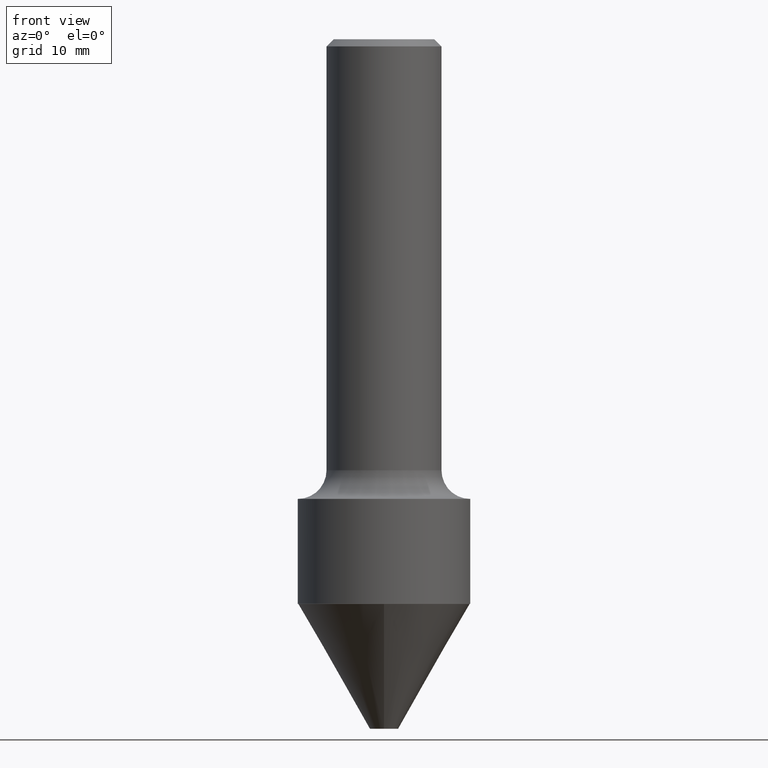
[diagram: clean part render]
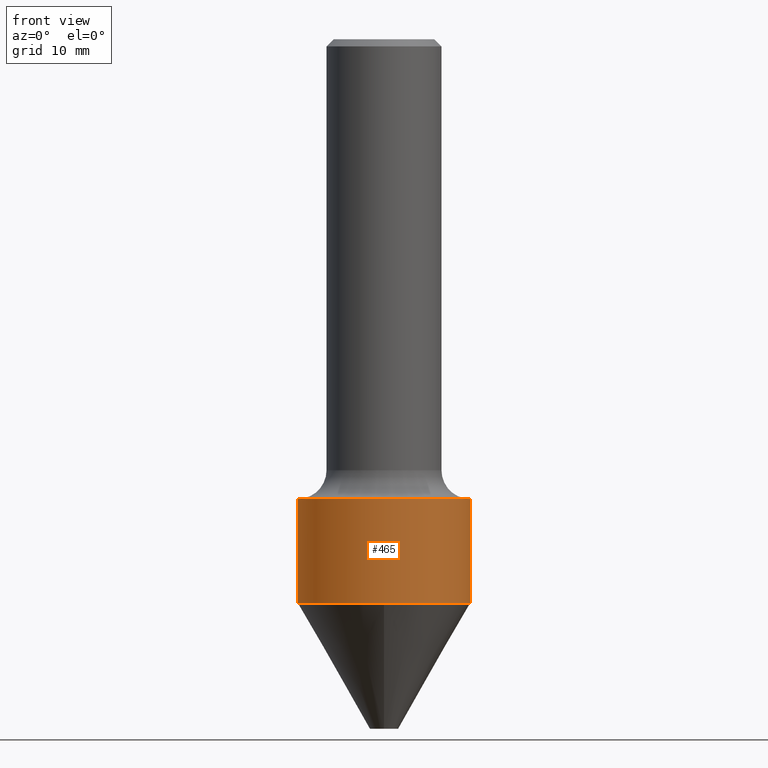
[diagram: same view with one face highlighted and labeled with its STEP entity id]
A machine part, front view. The second image highlights one B-rep face of the part: STEP entity #465.
In plain terms, the highlighted cylindrical surface (partial cylindrical patch) has radius 9.525 mm, axis along (-0, 0, 1).
Its self-contained STEP definition (entity closure, byte-faithful):
#9 = ORIENTED_EDGE ( 'NONE', *, *, #228, .T. ) ;
#14 = VERTEX_POINT ( 'NONE', #270 ) ;
#19 = EDGE_CURVE ( 'NONE', #511, #14, #169, .T. ) ;
#35 = EDGE_CURVE ( 'NONE', #111, #14, #130, .T. ) ;
#44 = CARTESIAN_POINT ( 'NONE',  ( 0.3750000000000000555, -1.119369640607714884E-14, -2.456002071827207978 ) ) ;
#48 = CARTESIAN_POINT ( 'NONE',  ( -0.3750000000000000555, 2.664535259100376091E-15, -1.844600658845589598E-29 ) ) ;
#64 = DIRECTION ( 'NONE',  ( -2.445468806185136597E-29, 3.491481338843145583E-15, 1.000000000000000000 ) ) ;
#73 = LINE ( 'NONE', #48, #232 ) ;
#80 = DIRECTION ( 'NONE',  ( 1.000000000000000000, -6.982962677686265922E-15, 4.876176775795935793E-29 ) ) ;
#92 = DIRECTION ( 'NONE',  ( 1.000000000000000000, -6.982962677686266711E-15, 0.000000000000000000 ) ) ;
#107 = AXIS2_PLACEMENT_3D ( 'NONE', #223, #64, #339 ) ;
#111 = VERTEX_POINT ( 'NONE', #44 ) ;
#130 = LINE ( 'NONE', #298, #318 ) ;
#148 = EDGE_CURVE ( 'NONE', #493, #511, #73, .T. ) ;
#169 = CIRCLE ( 'NONE', #107, 0.3750000000000000555 ) ;
#220 = AXIS2_PLACEMENT_3D ( 'NONE', #330, #408, #80 ) ;
#223 = CARTESIAN_POINT ( 'NONE',  ( 4.890937612370273754E-29, -6.982962677686291954E-15, -2.000000000000000444 ) ) ;
#228 = EDGE_CURVE ( 'NONE', #493, #111, #413, .T. ) ;
#232 = VECTOR ( 'NONE', #239, 39.37007874015748143 ) ;
#239 = DIRECTION ( 'NONE',  ( -2.445468806185136877E-29, 3.491481338843145188E-15, 1.000000000000000000 ) ) ;
#270 = CARTESIAN_POINT ( 'NONE',  ( 0.3750000000000000555, -9.601573681818641971E-15, -2.000000000000000444 ) ) ;
#298 = CARTESIAN_POINT ( 'NONE',  ( 0.3750000000000000555, -2.618611004132350016E-15, 1.828566290923476203E-29 ) ) ;
#308 = DIRECTION ( 'NONE',  ( -2.445468806185136597E-29, 3.491481338843145583E-15, 1.000000000000000000 ) ) ;
#318 = VECTOR ( 'NONE', #409, 39.37007874015748143 ) ;
#328 = AXIS2_PLACEMENT_3D ( 'NONE', #455, #308, #92 ) ;
#330 = CARTESIAN_POINT ( 'NONE',  ( 0.000000000000000000, 0.000000000000000000, 0.000000000000000000 ) ) ;
#333 = CYLINDRICAL_SURFACE ( 'NONE', #220, 0.3750000000000000555 ) ;
#339 = DIRECTION ( 'NONE',  ( 1.000000000000000000, -6.982962677686266711E-15, 0.000000000000000000 ) ) ;
#408 = DIRECTION ( 'NONE',  ( -2.445468806185136597E-29, 3.491481338843145583E-15, 1.000000000000000000 ) ) ;
#409 = DIRECTION ( 'NONE',  ( -2.445468806185136877E-29, 3.491481338843145188E-15, 1.000000000000000000 ) ) ;
#413 = CIRCLE ( 'NONE', #328, 0.3750000000000000555 ) ;
#425 = ORIENTED_EDGE ( 'NONE', *, *, #19, .F. ) ;
#444 = ORIENTED_EDGE ( 'NONE', *, *, #35, .T. ) ;
#445 = FACE_OUTER_BOUND ( 'NONE', #453, .T. ) ;
#449 = ORIENTED_EDGE ( 'NONE', *, *, #148, .F. ) ;
#453 = EDGE_LOOP ( 'NONE', ( #449, #9, #444, #425 ) ) ;
#455 = CARTESIAN_POINT ( 'NONE',  ( 6.006076454579503906E-29, -8.575085401944798820E-15, -2.456002071827207978 ) ) ;
#461 = CARTESIAN_POINT ( 'NONE',  ( -0.3750000000000000555, -4.318427418585916257E-15, -2.000000000000000444 ) ) ;
#465 = ADVANCED_FACE ( 'NONE', ( #445 ), #333, .T. ) ;
#493 = VERTEX_POINT ( 'NONE', #497 ) ;
#497 = CARTESIAN_POINT ( 'NONE',  ( -0.3750000000000000555, -5.114488780715169690E-15, -2.456002071827207978 ) ) ;
#511 = VERTEX_POINT ( 'NONE', #461 ) ;